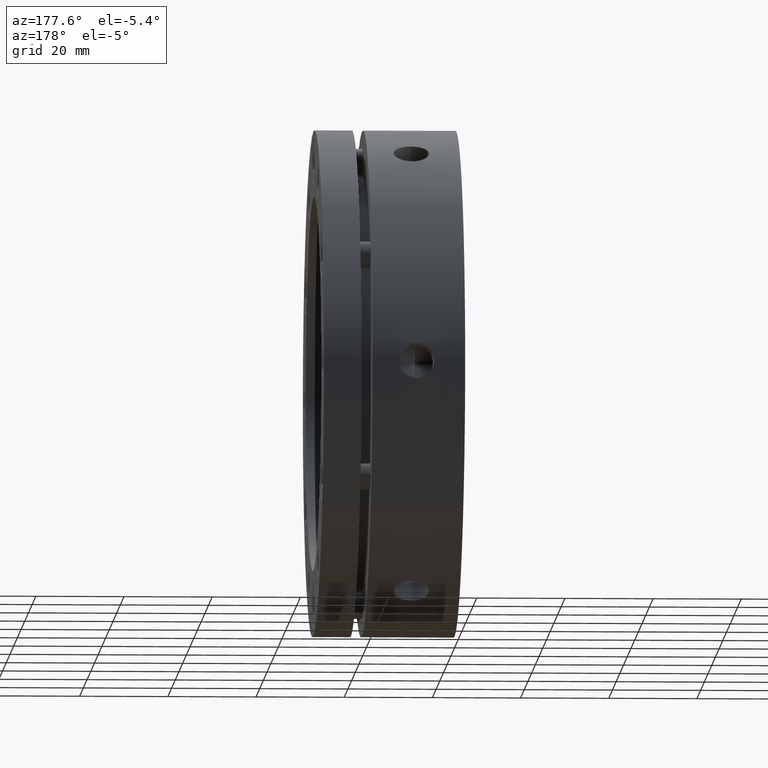
[diagram: clean part render]
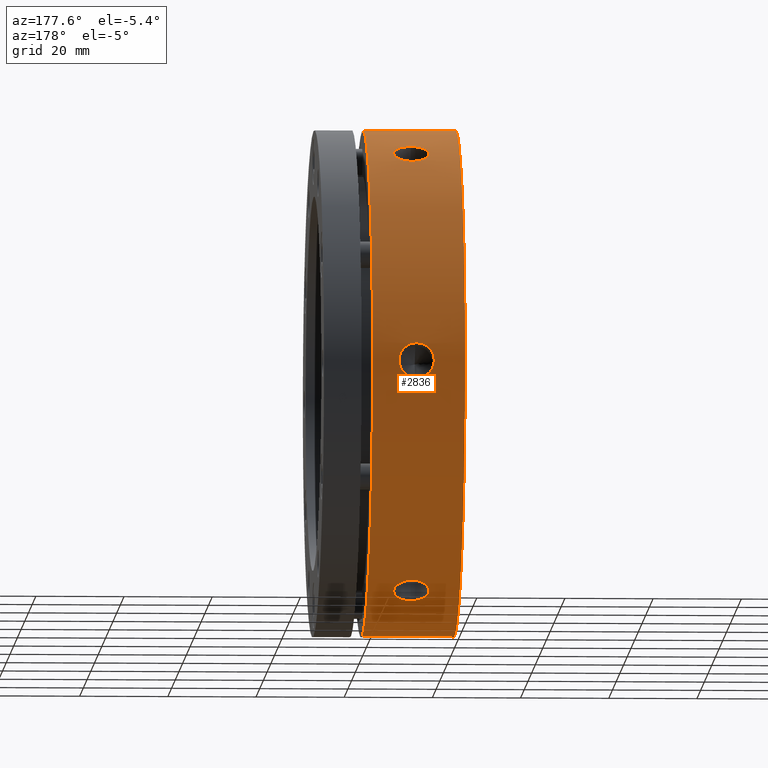
[diagram: same view with one face highlighted and labeled with its STEP entity id]
A machine part, auxiliary view. The second image highlights one B-rep face of the part: STEP entity #2836.
In plain terms, the highlighted cylindrical surface (partial cylindrical patch) has radius 57.5 mm, axis along (1, 0, 0).
Its self-contained STEP definition (entity closure, byte-faithful):
#37 = EDGE_LOOP ( 'NONE', ( #228, #233 ) ) ;
#105 = VERTEX_POINT ( 'NONE', #1283 ) ;
#113 = VERTEX_POINT ( 'NONE', #1280 ) ;
#115 = VERTEX_POINT ( 'NONE', #1287 ) ;
#117 = EDGE_LOOP ( 'NONE', ( #231, #198 ) ) ;
#158 = ORIENTED_EDGE ( 'NONE', *, *, #579, .T. ) ;
#189 = ORIENTED_EDGE ( 'NONE', *, *, #577, .T. ) ;
#198 = ORIENTED_EDGE ( 'NONE', *, *, #581, .T. ) ;
#228 = ORIENTED_EDGE ( 'NONE', *, *, #580, .T. ) ;
#231 = ORIENTED_EDGE ( 'NONE', *, *, #584, .T. ) ;
#233 = ORIENTED_EDGE ( 'NONE', *, *, #583, .T. ) ;
#255 = ORIENTED_EDGE ( 'NONE', *, *, #578, .T. ) ;
#263 = ORIENTED_EDGE ( 'NONE', *, *, #585, .T. ) ;
#265 = ORIENTED_EDGE ( 'NONE', *, *, #582, .T. ) ;
#276 = ORIENTED_EDGE ( 'NONE', *, *, #586, .F. ) ;
#334 = VERTEX_POINT ( 'NONE', #1325 ) ;
#384 = VERTEX_POINT ( 'NONE', #1375 ) ;
#425 = VERTEX_POINT ( 'NONE', #1807 ) ;
#431 = VERTEX_POINT ( 'NONE', #1813 ) ;
#445 = VERTEX_POINT ( 'NONE', #1827 ) ;
#454 = VERTEX_POINT ( 'NONE', #1836 ) ;
#484 = VERTEX_POINT ( 'NONE', #1866 ) ;
#575 = AXIS2_PLACEMENT_3D ( 'NONE', #2081, #2082, #2083 ) ;
#576 = AXIS2_PLACEMENT_3D ( 'NONE', #2011, #2012, #2013 ) ;
#577 = EDGE_CURVE ( 'NONE', #454, #115, #4128, .T. ) ;
#578 = EDGE_CURVE ( 'NONE', #384, #334, #4142, .T. ) ;
#579 = EDGE_CURVE ( 'NONE', #115, #454, #4119, .T. ) ;
#580 = EDGE_CURVE ( 'NONE', #105, #113, #4120, .T. ) ;
#581 = EDGE_CURVE ( 'NONE', #445, #431, #4133, .T. ) ;
#582 = EDGE_CURVE ( 'NONE', #484, #384, #4146, .T. ) ;
#583 = EDGE_CURVE ( 'NONE', #113, #105, #4118, .T. ) ;
#584 = EDGE_CURVE ( 'NONE', #431, #445, #4132, .T. ) ;
#585 = EDGE_CURVE ( 'NONE', #334, #425, #4147, .T. ) ;
#586 = EDGE_CURVE ( 'NONE', #484, #425, #4144, .T. ) ;
#1280 = CARTESIAN_POINT ( 'NONE',  ( 10.99999999999998800, 57.36070083253864700, -4.000000000000033800 ) ) ;
#1283 = CARTESIAN_POINT ( 'NONE',  ( 10.99999999999998800, 57.36070083253865400, 3.999999999999966200 ) ) ;
#1287 = CARTESIAN_POINT ( 'NONE',  ( 10.99999999999998800, 25.21624880113162300, 51.67582409985764300 ) ) ;
#1325 = CARTESIAN_POINT ( 'NONE',  ( 20.99999999999999300, 7.041719095097280500E-015, 57.50000000000000000 ) ) ;
#1375 = CARTESIAN_POINT ( 'NONE',  ( -1.734723475976807100E-014, 7.041719095097280500E-015, 57.50000000000000000 ) ) ;
#1468 = EDGE_LOOP ( 'NONE', ( #265, #255, #263, #276 ) ) ;
#1470 = EDGE_LOOP ( 'NONE', ( #158, #189 ) ) ;
#1801 = AXIS2_PLACEMENT_3D ( 'NONE', #3318, #3319, #3317 ) ;
#1807 = CARTESIAN_POINT ( 'NONE',  ( 20.99999999999999300, 0.0000000000000000000, -57.50000000000000000 ) ) ;
#1813 = CARTESIAN_POINT ( 'NONE',  ( 10.99999999999998800, 32.14445203140706300, -47.67582409985768500 ) ) ;
#1827 = CARTESIAN_POINT ( 'NONE',  ( 10.99999999999998800, 25.21624880113154900, -51.67582409985767800 ) ) ;
#1836 = CARTESIAN_POINT ( 'NONE',  ( 10.99999999999998800, 32.14445203140713400, 47.67582409985763500 ) ) ;
#1866 = CARTESIAN_POINT ( 'NONE',  ( -1.734723475976807100E-014, 0.0000000000000000000, -57.50000000000000000 ) ) ;
#1870 = CARTESIAN_POINT ( 'NONE',  ( 10.73906882855554000, 25.21624880113162700, 51.67582409985765000 ) ) ;
#1871 = CARTESIAN_POINT ( 'NONE',  ( 11.26093147023325600, 32.14445203140714100, 47.67582409985763500 ) ) ;
#1872 = CARTESIAN_POINT ( 'NONE',  ( 10.99999999999998800, 32.14445203140713400, 47.67582409985763500 ) ) ;
#1873 = CARTESIAN_POINT ( 'NONE',  ( 15.99999999999998600, 7.041719095097280500E-015, 57.50000000000000000 ) ) ;
#1874 = CARTESIAN_POINT ( 'NONE',  ( 11.52596466412258500, 32.12275417206658500, 47.69047382467979900 ) ) ;
#1875 = CARTESIAN_POINT ( 'NONE',  ( 12.03890831663679400, 32.03764667598301900, 47.74768920781782100 ) ) ;
#1876 = CARTESIAN_POINT ( 'NONE',  ( 12.28822719016512000, 31.97470622802764200, 47.78993885739011900 ) ) ;
#1877 = CARTESIAN_POINT ( 'NONE',  ( 12.77248041611410700, 31.80750319251178500, 47.90138656678016100 ) ) ;
#1878 = CARTESIAN_POINT ( 'NONE',  ( 13.00654278936334800, 31.70289406937428500, 47.97079893058314300 ) ) ;
#1879 = CARTESIAN_POINT ( 'NONE',  ( 13.43976521071504000, 31.46045222521551900, 48.13014635545309300 ) ) ;
#1880 = CARTESIAN_POINT ( 'NONE',  ( 13.64170913421606300, 31.32178830099126200, 48.22064409366769400 ) ) ;
#1881 = CARTESIAN_POINT ( 'NONE',  ( 14.01510267501770500, 31.00761954414315000, 48.42326372092192300 ) ) ;
#1882 = CARTESIAN_POINT ( 'NONE',  ( 14.18063789360947000, 30.83702952126178000, 48.53220151140435900 ) ) ;
#1883 = CARTESIAN_POINT ( 'NONE',  ( 14.47018577615315800, 30.47029642599814300, 48.76328546099551200 ) ) ;
#1884 = CARTESIAN_POINT ( 'NONE',  ( 14.59536499255695900, 30.27171010285709600, 48.88693398143495000 ) ) ;
#1885 = CARTESIAN_POINT ( 'NONE',  ( 14.79602080447028800, 29.85850001485257700, 49.14039808059808900 ) ) ;
#1886 = CARTESIAN_POINT ( 'NONE',  ( 14.87161879076385800, 29.64512531126395300, 49.26948599613868400 ) ) ;
#1887 = CARTESIAN_POINT ( 'NONE',  ( 14.97385832254972000, 29.20467770410617100, 49.53183325139027500 ) ) ;
#1888 = CARTESIAN_POINT ( 'NONE',  ( 15.00018449498760900, 28.97645456168723000, 49.66573193537999500 ) ) ;
#1889 = CARTESIAN_POINT ( 'NONE',  ( 14.99981353484744400, 28.51868306825965100, 49.92999663223212500 ) ) ;
#1890 = CARTESIAN_POINT ( 'NONE',  ( 14.97369581653621800, 28.29272431532817900, 50.05833694759456900 ) ) ;
#1891 = CARTESIAN_POINT ( 'NONE',  ( 14.87171137333484000, 27.84652060741690600, 50.30791823562945800 ) ) ;
#1892 = CARTESIAN_POINT ( 'NONE',  ( 14.79459769623326100, 27.62393064367849500, 50.43041838694978900 ) ) ;
#1893 = CARTESIAN_POINT ( 'NONE',  ( 14.59351317771416000, 27.19817988631913200, 50.66130331684122000 ) ) ;
#1894 = CARTESIAN_POINT ( 'NONE',  ( 14.47051394654894600, 26.99550015834699600, 50.76948147593488900 ) ) ;
#1895 = CARTESIAN_POINT ( 'NONE',  ( 14.17998151324754200, 26.61076559686040000, 50.97219273764429900 ) ) ;
#1896 = CARTESIAN_POINT ( 'NONE',  ( 14.01097261737324300, 26.42806162449251400, 51.06703051933937600 ) ) ;
#1897 = CARTESIAN_POINT ( 'NONE',  ( 13.64185719876819500, 26.09976969093445800, 51.23559377397015900 ) ) ;
#1898 = CARTESIAN_POINT ( 'NONE',  ( 13.44045195477934700, 25.95199722551209100, 51.31047894506343000 ) ) ;
#1899 = CARTESIAN_POINT ( 'NONE',  ( 13.00307048642355500, 25.69052357338179600, 51.44189351190620800 ) ) ;
#1900 = CARTESIAN_POINT ( 'NONE',  ( 12.77035209164166000, 25.57922856058415600, 51.49721380239713400 ) ) ;
#1901 = CARTESIAN_POINT ( 'NONE',  ( 12.28900802777194900, 25.40028439887981500, 51.58571038204695500 ) ) ;
#1902 = CARTESIAN_POINT ( 'NONE',  ( 12.03682355500182900, 25.33128360877485700, 51.61955741861896000 ) ) ;
#1903 = CARTESIAN_POINT ( 'NONE',  ( 11.52049633388874900, 25.23903681478749700, 51.66472353573651300 ) ) ;
#1904 = CARTESIAN_POINT ( 'NONE',  ( 11.26093117157644000, 25.21624880113162700, 51.67582409985765700 ) ) ;
#1905 = CARTESIAN_POINT ( 'NONE',  ( 10.99999999999998800, 25.21624880113162300, 51.67582409985764300 ) ) ;
#1906 = DIRECTION ( 'NONE',  ( 1.000000000000000000, 0.0000000000000000000, 0.0000000000000000000 ) ) ;
#1907 = CARTESIAN_POINT ( 'NONE',  ( 10.99999999999998800, 25.21624880113162300, 51.67582409985764300 ) ) ;
#1908 = CARTESIAN_POINT ( 'NONE',  ( 10.99999999999998800, 57.36070083253865400, 3.999999999999966200 ) ) ;
#1909 = CARTESIAN_POINT ( 'NONE',  ( 10.73906882855553800, 57.36070083253862600, 3.999999999999967100 ) ) ;
#1910 = CARTESIAN_POINT ( 'NONE',  ( 10.47403593978073600, 25.23978471006012500, 51.66435809142959100 ) ) ;
#1911 = CARTESIAN_POINT ( 'NONE',  ( 9.961092841552776600, 25.33188822617941200, 51.61926063114432100 ) ) ;
#1912 = CARTESIAN_POINT ( 'NONE',  ( 9.711774229373277800, 25.39994756787266900, 51.58587750407117100 ) ) ;
#1913 = CARTESIAN_POINT ( 'NONE',  ( 9.227521491415533500, 25.58006522349027600, 51.49679948771283500 ) ) ;
#1914 = CARTESIAN_POINT ( 'NONE',  ( 8.993459296715668600, 25.69248241725108900, 51.44091163230047700 ) ) ;
#1915 = CARTESIAN_POINT ( 'NONE',  ( 8.560237167897051700, 25.95170170940155800, 51.31062483257389300 ) ) ;
#1916 = CARTESIAN_POINT ( 'NONE',  ( 8.358293358466816900, 26.09940669884527900, 51.23578738532987100 ) ) ;
#1917 = CARTESIAN_POINT ( 'NONE',  ( 7.984899963111301300, 26.43196409733660700, 51.06501946522259800 ) ) ;
#1918 = CARTESIAN_POINT ( 'NONE',  ( 7.819364665421098900, 26.61160171775669900, 50.97175322739002500 ) ) ;
#1919 = CARTESIAN_POINT ( 'NONE',  ( 7.529816638176197500, 26.99509211334084600, 50.76969543783674500 ) ) ;
#1920 = CARTESIAN_POINT ( 'NONE',  ( 7.404637303575009700, 27.20146761754760700, 50.65953914048639500 ) ) ;
#1921 = CARTESIAN_POINT ( 'NONE',  ( 7.203981035229578100, 27.62757837172171800, 50.42842115106657300 ) ) ;
#1922 = CARTESIAN_POINT ( 'NONE',  ( 7.128382776179465800, 27.84605880983672000, 50.30817740283583800 ) ) ;
#1923 = CARTESIAN_POINT ( 'NONE',  ( 7.026142569049372200, 28.29348131916370700, 50.05791265802261600 ) ) ;
#1924 = CARTESIAN_POINT ( 'NONE',  ( 6.999815979123138000, 28.52355163893901500, 49.92721552166158700 ) ) ;
#1925 = CARTESIAN_POINT ( 'NONE',  ( 7.000185980869169100, 28.98129802536785600, 49.66290580111552800 ) ) ;
#1926 = CARTESIAN_POINT ( 'NONE',  ( 7.026303302387841400, 29.20542370961716100, 49.53138977727437000 ) ) ;
#1927 = CARTESIAN_POINT ( 'NONE',  ( 7.128287057515910500, 29.64466994726484800, 49.26975635259708500 ) ) ;
#1928 = CARTESIAN_POINT ( 'NONE',  ( 7.205400429535250100, 29.86205348003485200, 49.13823770815051300 ) ) ;
#1929 = CARTESIAN_POINT ( 'NONE',  ( 7.406484555519963200, 30.27488186125016200, 48.88496876744947200 ) ) ;
#1930 = CARTESIAN_POINT ( 'NONE',  ( 7.529483651544131500, 30.46990712075129800, 48.76353184868157300 ) ) ;
#1931 = CARTESIAN_POINT ( 'NONE',  ( 7.820015902800513200, 30.83782818023526700, 48.53169718267519500 ) ) ;
#1932 = CARTESIAN_POINT ( 'NONE',  ( 7.989024793412550500, 31.01131245621927900, 48.42088957439831600 ) ) ;
#1933 = CARTESIAN_POINT ( 'NONE',  ( 8.358140322899606300, 31.32143914019743000, 48.22086164327890900 ) ) ;
#1934 = CARTESIAN_POINT ( 'NONE',  ( 8.559545663050308000, 31.46017812097899500, 48.13032933867464900 ) ) ;
#1935 = CARTESIAN_POINT ( 'NONE',  ( 8.996927392173319000, 31.70472380842712900, 47.96959347216074600 ) ) ;
#1936 = CARTESIAN_POINT ( 'NONE',  ( 9.229646025445642700, 31.80828034124313300, 47.90086914599354600 ) ) ;
#1937 = CARTESIAN_POINT ( 'NONE',  ( 9.710990550978866800, 31.97439307886833900, 47.79014700172751900 ) ) ;
#1938 = CARTESIAN_POINT ( 'NONE',  ( 9.963175266802164000, 32.03820600725475000, 47.74731398949262500 ) ) ;
#1939 = CARTESIAN_POINT ( 'NONE',  ( 10.47950307215608500, 32.12344460648783700, 47.69000884869281300 ) ) ;
#1940 = CARTESIAN_POINT ( 'NONE',  ( 10.73906852989872200, 32.14445203140713400, 47.67582409985765000 ) ) ;
#1941 = CARTESIAN_POINT ( 'NONE',  ( 10.99999999999998800, 32.14445203140713400, 47.67582409985763500 ) ) ;
#1942 = CARTESIAN_POINT ( 'NONE',  ( 10.99999999999998800, 25.21624880113154900, -51.67582409985767800 ) ) ;
#1943 = CARTESIAN_POINT ( 'NONE',  ( 11.26093147023325600, 25.21624880113154500, -51.67582409985767800 ) ) ;
#1944 = CARTESIAN_POINT ( 'NONE',  ( 10.47403593978073600, 57.36253893242420100, 3.973884300752710700 ) ) ;
#1945 = CARTESIAN_POINT ( 'NONE',  ( 9.961092841552780200, 57.36953514423062500, 3.871571585872890100 ) ) ;
#1946 = CARTESIAN_POINT ( 'NONE',  ( 9.711774229373277800, 57.37465417897416100, 3.795938903465111600 ) ) ;
#1947 = CARTESIAN_POINT ( 'NONE',  ( 9.227521491415533500, 57.38756918169791300, 3.595413429850997700 ) ) ;
#1948 = CARTESIAN_POINT ( 'NONE',  ( 8.993459296715672100, 57.39537747602820200, 3.470113356525798200 ) ) ;
#1949 = CARTESIAN_POINT ( 'NONE',  ( 8.560237167897053500, 57.41215544376243000, 3.180479464509173000 ) ) ;
#1950 = CARTESIAN_POINT ( 'NONE',  ( 8.358293358466815100, 57.42119680801657500, 3.015144467763193800 ) ) ;
#1951 = CARTESIAN_POINT ( 'NONE',  ( 7.984899963111305800, 57.43958615029795600, 2.641757352399601200 ) ) ;
#1952 = CARTESIAN_POINT ( 'NONE',  ( 7.819364665421097100, 57.44863402922955900, 2.439553490724129400 ) ) ;
#1953 = CARTESIAN_POINT ( 'NONE',  ( 7.529816638176196600, 57.46539204823595500, 2.006412171264273500 ) ) ;
#1954 = CARTESIAN_POINT ( 'NONE',  ( 7.404637303575008800, 57.47318164844713100, 1.772607593227222300 ) ) ;
#1955 = CARTESIAN_POINT ( 'NONE',  ( 7.203981035229579000, 57.48608297542501300, 1.288025860576774700 ) ) ;
#1956 = CARTESIAN_POINT ( 'NONE',  ( 7.128382776179465800, 57.49118905386844600, 1.038694376823858300 ) ) ;
#1957 = CARTESIAN_POINT ( 'NONE',  ( 7.026142569049373100, 57.49816468185206700, 0.5260827451151047800 ) ) ;
#1958 = CARTESIAN_POINT ( 'NONE',  ( 6.999815979123140700, 57.50001280144917400, 0.2614874353523628500 ) ) ;
#1959 = CARTESIAN_POINT ( 'NONE',  ( 7.000185980869170900, 57.49998706220355200, -0.2670874240585665000 ) ) ;
#1960 = CARTESIAN_POINT ( 'NONE',  ( 7.026303302387841400, 57.49815368667704300, -0.5269439721796086400 ) ) ;
#1961 = CARTESIAN_POINT ( 'NONE',  ( 7.128287057515912300, 57.49119561325125000, -1.038159084837887000 ) ) ;
#1962 = CARTESIAN_POINT ( 'NONE',  ( 7.205400429535249200, 57.48598889247421100, -1.292178068804401300 ) ) ;
#1963 = CARTESIAN_POINT ( 'NONE',  ( 7.406484555519965000, 57.47306574644520800, -1.776332404690580800 ) ) ;
#1964 = CARTESIAN_POINT ( 'NONE',  ( 7.529483651544134100, 57.46541091958545200, -2.005947693182172900 ) ) ;
#1965 = CARTESIAN_POINT ( 'NONE',  ( 7.820015902800513200, 57.44859673908800300, -2.440494010285770200 ) ) ;
#1966 = CARTESIAN_POINT ( 'NONE',  ( 7.989024793412550500, 57.43937667337965500, -2.646139604583514600 ) ) ;
#1967 = CARTESIAN_POINT ( 'NONE',  ( 8.358140322899606300, 57.42121074555287000, -3.014731156859721900 ) ) ;
#1968 = CARTESIAN_POINT ( 'NONE',  ( 8.559545663050308000, 57.41217696029320900, -3.180148791013853500 ) ) ;
#1969 = CARTESIAN_POINT ( 'NONE',  ( 8.996927392173310200, 57.39524846031690700, -3.472299501986808600 ) ) ;
#1970 = CARTESIAN_POINT ( 'NONE',  ( 9.229646025445644500, 57.38750971440615000, -3.596344253216917900 ) ) ;
#1971 = CARTESIAN_POINT ( 'NONE',  ( 9.710990550978868500, 57.37467789352290700, -3.795563176025525700 ) ) ;
#1972 = CARTESIAN_POINT ( 'NONE',  ( 9.963175266802165800, 57.36948988100008500, -3.872243299215493800 ) ) ;
#1973 = CARTESIAN_POINT ( 'NONE',  ( 10.47950307215609200, 57.36248147291657100, -3.974714661934250200 ) ) ;
#1974 = CARTESIAN_POINT ( 'NONE',  ( 10.73906852989872500, 57.36070083253865400, -4.000000000000033800 ) ) ;
#1975 = CARTESIAN_POINT ( 'NONE',  ( 10.99999999999998800, 57.36070083253864700, -4.000000000000033800 ) ) ;
#1976 = CARTESIAN_POINT ( 'NONE',  ( 10.99999999999998800, 32.14445203140706300, -47.67582409985768500 ) ) ;
#1977 = CARTESIAN_POINT ( 'NONE',  ( 11.52596466412258500, 25.23978476465627800, -51.66435806487211100 ) ) ;
#1978 = CARTESIAN_POINT ( 'NONE',  ( 12.03890831663680300, 25.33188848798283400, -51.61926050278028600 ) ) ;
#1979 = CARTESIAN_POINT ( 'NONE',  ( 12.28822719016511500, 25.39994798179111500, -51.58587730071148100 ) ) ;
#1980 = CARTESIAN_POINT ( 'NONE',  ( 12.77248041611410500, 25.58006604707441100, -51.49679907905990500 ) ) ;
#1981 = CARTESIAN_POINT ( 'NONE',  ( 13.00654278936335500, 25.69248347903328500, -51.44091110285671000 ) ) ;
#1982 = CARTESIAN_POINT ( 'NONE',  ( 13.43976521071504700, 25.95170331907765900, -51.31062401930985600 ) ) ;
#1983 = CARTESIAN_POINT ( 'NONE',  ( 13.64170913421606500, 26.09940862146868000, -51.23578640745050400 ) ) ;
#1984 = CARTESIAN_POINT ( 'NONE',  ( 14.01510267501771000, 26.43196674440023500, -51.06501809657176900 ) ) ;
#1985 = CARTESIAN_POINT ( 'NONE',  ( 14.18063789360948100, 26.61160464983085900, -50.97175169836554400 ) ) ;
#1986 = CARTESIAN_POINT ( 'NONE',  ( 14.47018577615316400, 26.99509576821544200, -50.76969349625429800 ) ) ;
#1987 = CARTESIAN_POINT ( 'NONE',  ( 14.59536499255696300, 27.20147168962689200, -50.65953695578974700 ) ) ;
#1988 = CARTESIAN_POINT ( 'NONE',  ( 14.79602080447028800, 27.62758308245175000, -50.42841857205937800 ) ) ;
#1989 = CARTESIAN_POINT ( 'NONE',  ( 14.87161879076386100, 27.84606384842582100, -50.30817461599697500 ) ) ;
#1990 = CARTESIAN_POINT ( 'NONE',  ( 14.97385832254972900, 28.29348703966571000, -50.05790942678806500 ) ) ;
#1991 = CARTESIAN_POINT ( 'NONE',  ( 15.00018449498761300, 28.52355827274358500, -49.92721172971661000 ) ) ;
#1992 = CARTESIAN_POINT ( 'NONE',  ( 14.99981353484743900, 28.98130396025468500, -49.66290233570600800 ) ) ;
#1993 = CARTESIAN_POINT ( 'NONE',  ( 14.97369581653621400, 29.20542931015402000, -49.53138647314114700 ) ) ;
#1994 = CARTESIAN_POINT ( 'NONE',  ( 14.87171137333484000, 29.64467489985711200, -49.26975337084462600 ) ) ;
#1995 = CARTESIAN_POINT ( 'NONE',  ( 14.79459769623325700, 29.86205812473715300, -49.13823488327985700 ) ) ;
#1996 = CARTESIAN_POINT ( 'NONE',  ( 14.59351317771415800, 30.27488571805380200, -48.88496637667191900 ) ) ;
#1997 = CARTESIAN_POINT ( 'NONE',  ( 14.47051394654894500, 30.46991061594961900, -48.76352966296275300 ) ) ;
#1998 = CARTESIAN_POINT ( 'NONE',  ( 14.17998151324753800, 30.83783099896647800, -48.53169538985619600 ) ) ;
#1999 = CARTESIAN_POINT ( 'NONE',  ( 14.01097261737324500, 31.01131491333691100, -48.42088799926082000 ) ) ;
#2000 = CARTESIAN_POINT ( 'NONE',  ( 13.64185719876819500, 31.32144094077079900, -48.22086047225744200 ) ) ;
#2001 = CARTESIAN_POINT ( 'NONE',  ( 13.44045195477934100, 31.46017963401548900, -48.13032834876843000 ) ) ;
#2002 = CARTESIAN_POINT ( 'NONE',  ( 13.00307048642355300, 31.70472481339379200, -47.96959280702469600 ) ) ;
#2003 = CARTESIAN_POINT ( 'NONE',  ( 12.77035209164165900, 31.80828109670249400, -47.90086864387286900 ) ) ;
#2004 = CARTESIAN_POINT ( 'NONE',  ( 12.28900802777194400, 31.97439346367945100, -47.79014674380293600 ) ) ;
#2005 = CARTESIAN_POINT ( 'NONE',  ( 12.03682355500182900, 32.03820625224611300, -47.74731382497682800 ) ) ;
#2006 = CARTESIAN_POINT ( 'NONE',  ( 11.52049633388875400, 32.12344465405389100, -47.69000881652488700 ) ) ;
#2007 = CARTESIAN_POINT ( 'NONE',  ( 11.26093117157643400, 32.14445203140707000, -47.67582409985768500 ) ) ;
#2008 = CARTESIAN_POINT ( 'NONE',  ( 10.99999999999998800, 32.14445203140706300, -47.67582409985768500 ) ) ;
#2009 = CARTESIAN_POINT ( 'NONE',  ( 10.99999999999998800, 57.36070083253864700, -4.000000000000033800 ) ) ;
#2010 = CARTESIAN_POINT ( 'NONE',  ( 11.26093147023325600, 57.36070083253865400, -4.000000000000033800 ) ) ;
#2011 = CARTESIAN_POINT ( 'NONE',  ( -1.734723475976807100E-014, 0.0000000000000000000, 0.0000000000000000000 ) ) ;
#2012 = DIRECTION ( 'NONE',  ( 1.000000000000000000, 0.0000000000000000000, 0.0000000000000000000 ) ) ;
#2013 = DIRECTION ( 'NONE',  ( 0.0000000000000000000, 0.0000000000000000000, -1.000000000000000000 ) ) ;
#2014 = CARTESIAN_POINT ( 'NONE',  ( 10.73906882855554400, 32.14445203140707000, -47.67582409985768500 ) ) ;
#2015 = CARTESIAN_POINT ( 'NONE',  ( 11.52596466412258600, 57.36253893672282800, -3.973884240192300700 ) ) ;
#2016 = CARTESIAN_POINT ( 'NONE',  ( 12.03890831663679800, 57.36953516396585700, -3.871571294962446300 ) ) ;
#2017 = CARTESIAN_POINT ( 'NONE',  ( 12.28822719016512000, 57.37465420981871500, -3.795938443321366800 ) ) ;
#2018 = CARTESIAN_POINT ( 'NONE',  ( 12.77248041611410700, 57.38756923958616300, -3.595412512279736000 ) ) ;
#2019 = CARTESIAN_POINT ( 'NONE',  ( 13.00654278936334400, 57.39537754840751700, -3.470112172273549100 ) ) ;
#2020 = CARTESIAN_POINT ( 'NONE',  ( 13.43976521071503400, 57.41215554429316400, -3.180477663856748500 ) ) ;
#2021 = CARTESIAN_POINT ( 'NONE',  ( 13.64170913421606300, 57.42119692245991300, -3.015142313782794400 ) ) ;
#2022 = CARTESIAN_POINT ( 'NONE',  ( 14.01510267501770800, 57.43958628854335300, -2.641754375649838900 ) ) ;
#2023 = CARTESIAN_POINT ( 'NONE',  ( 14.18063789360946800, 57.44863417109260000, -2.439550186961178200 ) ) ;
#2024 = CARTESIAN_POINT ( 'NONE',  ( 14.47018577615315700, 57.46539219421354300, -2.006408035258801600 ) ) ;
#2025 = CARTESIAN_POINT ( 'NONE',  ( 14.59536499255696100, 57.47318179248394900, -1.772602974354786200 ) ) ;
#2026 = CARTESIAN_POINT ( 'NONE',  ( 14.79602080447028600, 57.48608309730428800, -1.288020491461300900 ) ) ;
#2027 = CARTESIAN_POINT ( 'NONE',  ( 14.87161879076385600, 57.49118915968969600, -1.038688619858276100 ) ) ;
#2028 = CARTESIAN_POINT ( 'NONE',  ( 14.97385832254972000, 57.49816474377183100, -0.5260761753977737400 ) ) ;
#2029 = CARTESIAN_POINT ( 'NONE',  ( 15.00018449498760900, 57.50001283443077000, -0.2614797943366001200 ) ) ;
#2030 = CARTESIAN_POINT ( 'NONE',  ( 14.99981353484744400, 57.49998702851430500, 0.2670942965260818000 ) ) ;
#2031 = CARTESIAN_POINT ( 'NONE',  ( 14.97369581653621800, 57.49815362548215300, 0.5269504744534180300 ) ) ;
#2032 = CARTESIAN_POINT ( 'NONE',  ( 14.87171137333484000, 57.49119550727398600, 1.038164864784832900 ) ) ;
#2033 = CARTESIAN_POINT ( 'NONE',  ( 14.79459769623326300, 57.48598876841560200, 1.292183503669917400 ) ) ;
#2034 = CARTESIAN_POINT ( 'NONE',  ( 14.59351317771416500, 57.47306560437290600, 1.776336940169306300 ) ) ;
#2035 = CARTESIAN_POINT ( 'NONE',  ( 14.47051394654894600, 57.46541077429658600, 2.005951812972130100 ) ) ;
#2036 = CARTESIAN_POINT ( 'NONE',  ( 14.17998151324754000, 57.44859659582682800, 2.440497347788101600 ) ) ;
#2037 = CARTESIAN_POINT ( 'NONE',  ( 14.01097261737323900, 57.43937653782937500, 2.646142520078553800 ) ) ;
#2038 = CARTESIAN_POINT ( 'NONE',  ( 13.64185719876819600, 57.42121063170522200, 3.014733301712742000 ) ) ;
#2039 = CARTESIAN_POINT ( 'NONE',  ( 13.44045195477934300, 57.41217685952754100, 3.180150596295002500 ) ) ;
#2040 = CARTESIAN_POINT ( 'NONE',  ( 13.00307048642355300, 57.39524838677557000, 3.472300704881515100 ) ) ;
#2041 = CARTESIAN_POINT ( 'NONE',  ( 12.77035209164165900, 57.38750965728660000, 3.596345158524253200 ) ) ;
#2042 = CARTESIAN_POINT ( 'NONE',  ( 12.28900802777194200, 57.37467786255923100, 3.795563638244038100 ) ) ;
#2043 = CARTESIAN_POINT ( 'NONE',  ( 12.03682355500182400, 57.36948986102090900, 3.872243593642136000 ) ) ;
#2044 = CARTESIAN_POINT ( 'NONE',  ( 11.52049633388875300, 57.36248146884134500, 3.974714719211625000 ) ) ;
#2045 = CARTESIAN_POINT ( 'NONE',  ( 11.26093117157643800, 57.36070083253866200, 3.999999999999967100 ) ) ;
#2046 = CARTESIAN_POINT ( 'NONE',  ( 10.99999999999998800, 57.36070083253865400, 3.999999999999966200 ) ) ;
#2047 = DIRECTION ( 'NONE',  ( 1.000000000000000000, 0.0000000000000000000, 0.0000000000000000000 ) ) ;
#2048 = CARTESIAN_POINT ( 'NONE',  ( 15.99999999999998600, 0.0000000000000000000, -57.50000000000000000 ) ) ;
#2049 = CARTESIAN_POINT ( 'NONE',  ( 10.47403593978073900, 32.12275422236412900, -47.69047379067689000 ) ) ;
#2050 = CARTESIAN_POINT ( 'NONE',  ( 9.961092841552782000, 32.03764691805125900, -47.74768904527142200 ) ) ;
#2051 = CARTESIAN_POINT ( 'NONE',  ( 9.711774229373283200, 31.97470661110150700, -47.78993860060605700 ) ) ;
#2052 = CARTESIAN_POINT ( 'NONE',  ( 9.227521491415531700, 31.80750395820766800, -47.90138605786181400 ) ) ;
#2053 = CARTESIAN_POINT ( 'NONE',  ( 8.993459296715668600, 31.70289505877712300, -47.97079827577466200 ) ) ;
#2054 = CARTESIAN_POINT ( 'NONE',  ( 8.560237167897053500, 31.46045373436089000, -48.13014536806469600 ) ) ;
#2055 = CARTESIAN_POINT ( 'NONE',  ( 8.358293358466816900, 31.32179010917133500, -48.22064291756667800 ) ) ;
#2056 = CARTESIAN_POINT ( 'NONE',  ( 7.984899963111305800, 31.00762205296136600, -48.42326211282301800 ) ) ;
#2057 = CARTESIAN_POINT ( 'NONE',  ( 7.819364665421100600, 30.83703231147289300, -48.53219973666590200 ) ) ;
#2058 = CARTESIAN_POINT ( 'NONE',  ( 7.529816638176202800, 30.47029993489515200, -48.76328326657246500 ) ) ;
#2059 = CARTESIAN_POINT ( 'NONE',  ( 7.404637303575008800, 30.27171403089953800, -48.88693154725918100 ) ) ;
#2060 = CARTESIAN_POINT ( 'NONE',  ( 7.203981035229580800, 29.85850460370332700, -49.14039529048978500 ) ) ;
#2061 = CARTESIAN_POINT ( 'NONE',  ( 7.128382776179467600, 29.64513024403174100, -49.26948302601196900 ) ) ;
#2062 = CARTESIAN_POINT ( 'NONE',  ( 7.026142569049375700, 29.20468336268840300, -49.53182991290751900 ) ) ;
#2063 = CARTESIAN_POINT ( 'NONE',  ( 6.999815979123141600, 28.97646116251020100, -49.66572808630922300 ) ) ;
#2064 = CARTESIAN_POINT ( 'NONE',  ( 7.000185980869169100, 28.51868903683572400, -49.92999322517410800 ) ) ;
#2065 = CARTESIAN_POINT ( 'NONE',  ( 7.026303302387839600, 28.29272997705992400, -50.05833374945399300 ) ) ;
#2066 = CARTESIAN_POINT ( 'NONE',  ( 7.128287057515908700, 27.84652566598642300, -50.30791543743498600 ) ) ;
#2067 = CARTESIAN_POINT ( 'NONE',  ( 7.205400429535245600, 27.62393541243938300, -50.43041577695490900 ) ) ;
#2068 = CARTESIAN_POINT ( 'NONE',  ( 7.406484555519961400, 27.19818388519507100, -50.66130117214006400 ) ) ;
#2069 = CARTESIAN_POINT ( 'NONE',  ( 7.529483651544130600, 26.99550379883418900, -50.76947954186376700 ) ) ;
#2070 = CARTESIAN_POINT ( 'NONE',  ( 7.820015902800513200, 26.61076855885278300, -50.97219119296096300 ) ) ;
#2071 = CARTESIAN_POINT ( 'NONE',  ( 7.989024793412546900, 26.42806421716041100, -51.06702917898182600 ) ) ;
#2072 = CARTESIAN_POINT ( 'NONE',  ( 8.358140322899604500, 26.09977160535548900, -51.23559280013861900 ) ) ;
#2073 = CARTESIAN_POINT ( 'NONE',  ( 8.559545663050300800, 25.95199883931425300, -51.31047812968849800 ) ) ;
#2074 = CARTESIAN_POINT ( 'NONE',  ( 8.996927392173308400, 25.69052465188984900, -51.44189297414754900 ) ) ;
#2075 = CARTESIAN_POINT ( 'NONE',  ( 9.229646025445642700, 25.57922937316307000, -51.49721339921045200 ) ) ;
#2076 = CARTESIAN_POINT ( 'NONE',  ( 9.710990550978868500, 25.40028481465462600, -51.58571017775307200 ) ) ;
#2077 = CARTESIAN_POINT ( 'NONE',  ( 9.963175266802164000, 25.33128387374538400, -51.61955728870813000 ) ) ;
#2078 = CARTESIAN_POINT ( 'NONE',  ( 10.47950307215608500, 25.23903686642875500, -51.66472351062705600 ) ) ;
#2079 = CARTESIAN_POINT ( 'NONE',  ( 10.73906852989872200, 25.21624880113155600, -51.67582409985768500 ) ) ;
#2080 = CARTESIAN_POINT ( 'NONE',  ( 10.99999999999998800, 25.21624880113154900, -51.67582409985767800 ) ) ;
#2081 = CARTESIAN_POINT ( 'NONE',  ( 20.99999999999999300, 0.0000000000000000000, 0.0000000000000000000 ) ) ;
#2082 = DIRECTION ( 'NONE',  ( -1.000000000000000000, -0.0000000000000000000, -0.0000000000000000000 ) ) ;
#2083 = DIRECTION ( 'NONE',  ( 0.0000000000000000000, 0.0000000000000000000, -1.000000000000000000 ) ) ;
#2836 = ADVANCED_FACE ( 'NONE', ( #4643, #4651, #4637, #4647 ), #4655, .T. ) ;
#3317 = DIRECTION ( 'NONE',  ( 0.0000000000000000000, 0.0000000000000000000, -1.000000000000000000 ) ) ;
#3318 = CARTESIAN_POINT ( 'NONE',  ( 15.99999999999998600, 0.0000000000000000000, 0.0000000000000000000 ) ) ;
#3319 = DIRECTION ( 'NONE',  ( 1.000000000000000000, 0.0000000000000000000, 0.0000000000000000000 ) ) ;
#4118 = B_SPLINE_CURVE_WITH_KNOTS ( 'NONE', 3,
 ( #2009, #2010, #2015, #2016, #2017, #2018, #2019, #2020, #2021, #2022, #2023, #2024, #2025, #2026, #2027, #2028, #2029, #2030, #2031, #2032, #2033, #2034, #2035, #2036, #2037, #2038, #2039, #2040, #2041, #2042, #2043, #2044, #2045, #2046 ),
 .UNSPECIFIED., .F., .F.,
 ( 4, 2, 2, 2, 2, 2, 2, 2, 2, 2, 2, 2, 2, 2, 2, 2, 4 ),
 ( 0.006256231899665340600, 0.007037915843400137500, 0.007819599787134933600, 0.008601283730869730600, 0.009382967674604527500, 0.01016465161833932400, 0.01094633556207412100, 0.01172801950580892000, 0.01250970344954371900, 0.01329138739327851600, 0.01407307133701331300, 0.01485475528074811000, 0.01563643922448290600, 0.01641812316821770300, 0.01719980711195250000, 0.01798149105568729700, 0.01876317499942209400 ),
 .UNSPECIFIED. ) ;
#4119 = B_SPLINE_CURVE_WITH_KNOTS ( 'NONE', 3,
 ( #1907, #1870, #1910, #1911, #1912, #1913, #1914, #1915, #1916, #1917, #1918, #1919, #1920, #1921, #1922, #1923, #1924, #1925, #1926, #1927, #1928, #1929, #1930, #1931, #1932, #1933, #1934, #1935, #1936, #1937, #1938, #1939, #1940, #1941 ),
 .UNSPECIFIED., .F., .F.,
 ( 4, 2, 2, 2, 2, 2, 2, 2, 2, 2, 2, 2, 2, 2, 2, 2, 4 ),
 ( 0.01876317499942211800, 0.01954485894276147100, 0.02032654288610082100, 0.02110822682944017400, 0.02188991077277952600, 0.02267159471611888300, 0.02345327865945823900, 0.02423496260279759500, 0.02501664654613695500, 0.02579833048947631100, 0.02658001443281567100, 0.02736169837615502800, 0.02814338231949438400, 0.02892506626283374000, 0.02970675020617309000, 0.03048843414951244200, 0.03127011809285179500 ),
 .UNSPECIFIED. ) ;
#4120 = B_SPLINE_CURVE_WITH_KNOTS ( 'NONE', 3,
 ( #1908, #1909, #1944, #1945, #1946, #1947, #1948, #1949, #1950, #1951, #1952, #1953, #1954, #1955, #1956, #1957, #1958, #1959, #1960, #1961, #1962, #1963, #1964, #1965, #1966, #1967, #1968, #1969, #1970, #1971, #1972, #1973, #1974, #1975 ),
 .UNSPECIFIED., .F., .F.,
 ( 4, 2, 2, 2, 2, 2, 2, 2, 2, 2, 2, 2, 2, 2, 2, 2, 4 ),
 ( 0.01876317499942209400, 0.01954485894276144700, 0.02032654288610080000, 0.02110822682944015300, 0.02188991077277950600, 0.02267159471611885800, 0.02345327865945821100, 0.02423496260279756800, 0.02501664654613692400, 0.02579833048947628000, 0.02658001443281563700, 0.02736169837615498900, 0.02814338231949434900, 0.02892506626283370500, 0.02970675020617306200, 0.03048843414951241800, 0.03127011809285177400 ),
 .UNSPECIFIED. ) ;
#4128 = B_SPLINE_CURVE_WITH_KNOTS ( 'NONE', 3,
 ( #1872, #1871, #1874, #1875, #1876, #1877, #1878, #1879, #1880, #1881, #1882, #1883, #1884, #1885, #1886, #1887, #1888, #1889, #1890, #1891, #1892, #1893, #1894, #1895, #1896, #1897, #1898, #1899, #1900, #1901, #1902, #1903, #1904, #1905 ),
 .UNSPECIFIED., .F., .F.,
 ( 4, 2, 2, 2, 2, 2, 2, 2, 2, 2, 2, 2, 2, 2, 2, 2, 4 ),
 ( 0.006256231899665358800, 0.007037915843400156600, 0.007819599787134954400, 0.008601283730869751400, 0.009382967674604548300, 0.01016465161833934500, 0.01094633556207414400, 0.01172801950580894100, 0.01250970344954374000, 0.01329138739327853600, 0.01407307133701333300, 0.01485475528074813000, 0.01563643922448292700, 0.01641812316821772400, 0.01719980711195252100, 0.01798149105568732200, 0.01876317499942211800 ),
 .UNSPECIFIED. ) ;
#4132 = B_SPLINE_CURVE_WITH_KNOTS ( 'NONE', 3,
 ( #1976, #2014, #2049, #2050, #2051, #2052, #2053, #2054, #2055, #2056, #2057, #2058, #2059, #2060, #2061, #2062, #2063, #2064, #2065, #2066, #2067, #2068, #2069, #2070, #2071, #2072, #2073, #2074, #2075, #2076, #2077, #2078, #2079, #2080 ),
 .UNSPECIFIED., .F., .F.,
 ( 4, 2, 2, 2, 2, 2, 2, 2, 2, 2, 2, 2, 2, 2, 2, 2, 4 ),
 ( 0.01876317499942212200, 0.01954485894276147500, 0.02032654288610083100, 0.02110822682944018400, 0.02188991077277953700, 0.02267159471611889000, 0.02345327865945824600, 0.02423496260279760200, 0.02501664654613695900, 0.02579833048947631100, 0.02658001443281566800, 0.02736169837615502400, 0.02814338231949438000, 0.02892506626283374000, 0.02970675020617310000, 0.03048843414951246300, 0.03127011809285182300 ),
 .UNSPECIFIED. ) ;
#4133 = B_SPLINE_CURVE_WITH_KNOTS ( 'NONE', 3,
 ( #1942, #1943, #1977, #1978, #1979, #1980, #1981, #1982, #1983, #1984, #1985, #1986, #1987, #1988, #1989, #1990, #1991, #1992, #1993, #1994, #1995, #1996, #1997, #1998, #1999, #2000, #2001, #2002, #2003, #2004, #2005, #2006, #2007, #2008 ),
 .UNSPECIFIED., .F., .F.,
 ( 4, 2, 2, 2, 2, 2, 2, 2, 2, 2, 2, 2, 2, 2, 2, 2, 4 ),
 ( 0.006256231899665346700, 0.007037915843400145400, 0.007819599787134944000, 0.008601283730869741000, 0.009382967674604541400, 0.01016465161833933800, 0.01094633556207413700, 0.01172801950580893600, 0.01250970344954373400, 0.01329138739327853300, 0.01407307133701333200, 0.01485475528074813000, 0.01563643922448292700, 0.01641812316821772400, 0.01719980711195252500, 0.01798149105568732500, 0.01876317499942212200 ),
 .UNSPECIFIED. ) ;
#4142 = LINE ( 'NONE', #1873, #4148 ) ;
#4144 = LINE ( 'NONE', #2048, #4149 ) ;
#4146 = CIRCLE ( 'NONE', #576, 57.50000000000000000 ) ;
#4147 = CIRCLE ( 'NONE', #575, 57.50000000000000000 ) ;
#4148 = VECTOR ( 'NONE', #1906, 1000.000000000000000 ) ;
#4149 = VECTOR ( 'NONE', #2047, 1000.000000000000000 ) ;
#4637 = FACE_BOUND ( 'NONE', #117, .T. ) ;
#4643 = FACE_BOUND ( 'NONE', #1470, .T. ) ;
#4647 = FACE_OUTER_BOUND ( 'NONE', #1468, .T. ) ;
#4651 = FACE_BOUND ( 'NONE', #37, .T. ) ;
#4655 = CYLINDRICAL_SURFACE ( 'NONE', #1801, 57.50000000000000000 ) ;